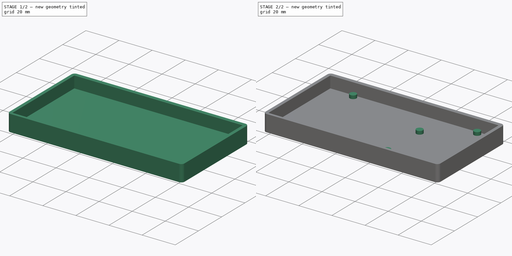
[diagram: build sequence overview — one tinted view per stage of 2, left to right]
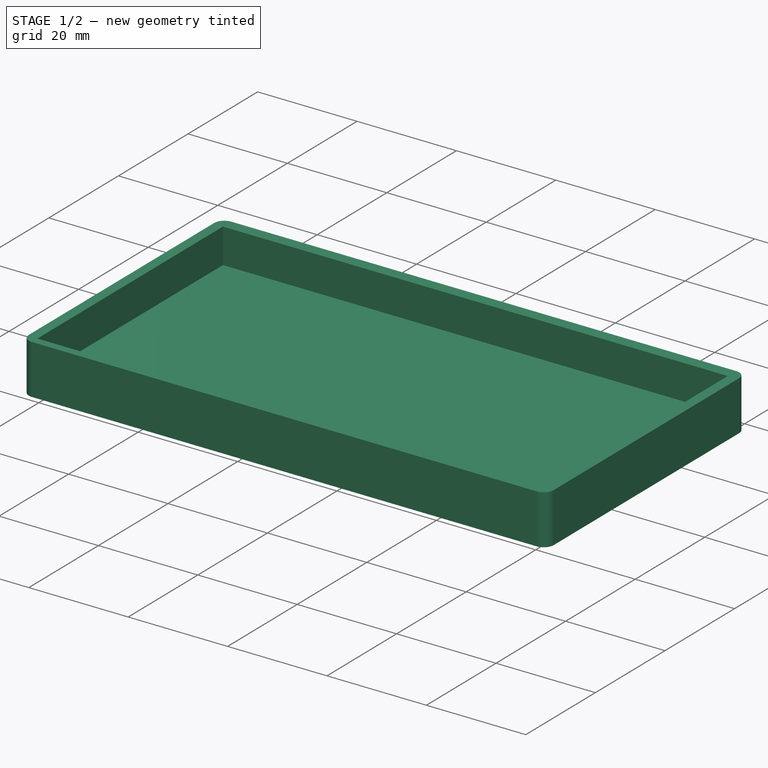
[diagram: stage 1 of 2 — iso view after this stage's code; geometry added in this stage tinted green]
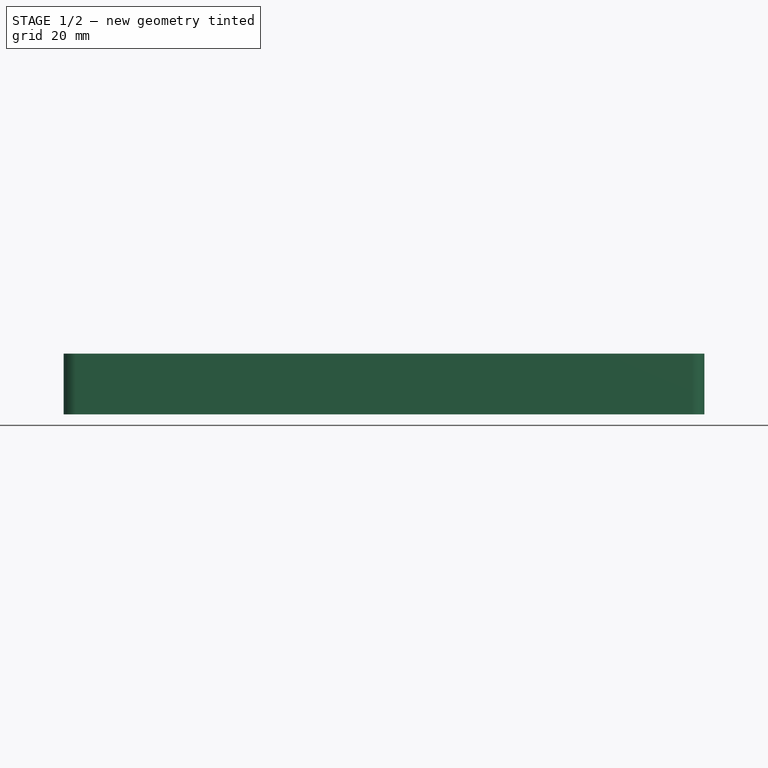
[diagram: stage 1 of 2 — front view after this stage's code; geometry added in this stage tinted green]
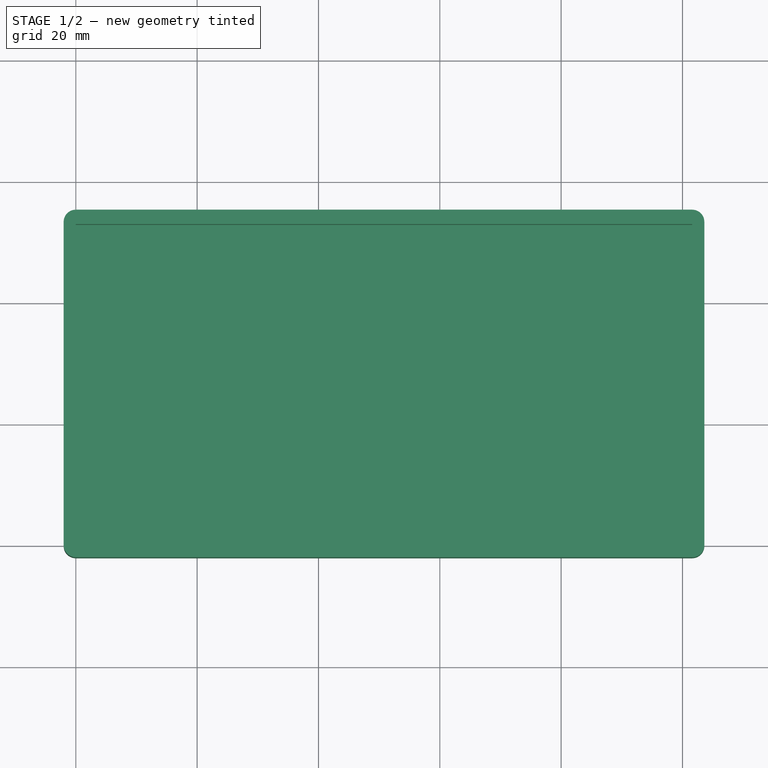
[diagram: stage 1 of 2 — top view after this stage's code; geometry added in this stage tinted green]
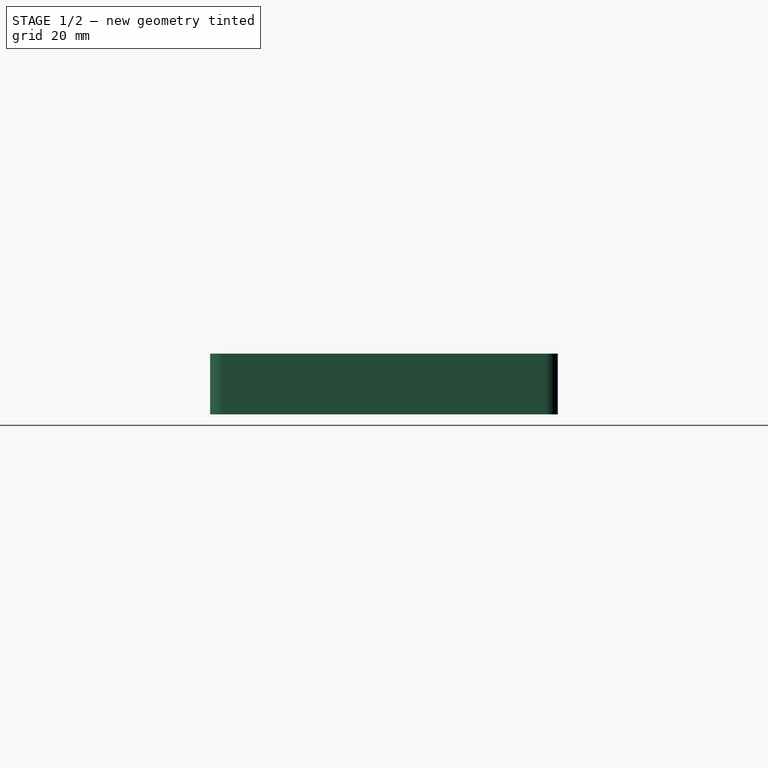
[diagram: stage 1 of 2 — right view after this stage's code; geometry added in this stage tinted green]
FCSTD DOCUMENT
Label: MegaCaseBottom
objects: Sketcher::SketchObject×3, PartDesign::Pad×2, PartDesign::Pocket×1
note: 8 computed .brp shape members not serialized (recipe doc carries the construction recipe); baked Part::Feature solids carry a one-line shape summary decoded from their .brp

FEATURE [Sketcher::SketchObject] Sketch
  sketch-geometry (20):
    g0: LineSegment [constr] StartX=0 StartY=0 StartZ=0 EndX=101.6 EndY=0 EndZ=0
    g1: LineSegment [constr] StartX=101.6 StartY=0 StartZ=0 EndX=101.6 EndY=53.3 EndZ=0
    g2: LineSegment [constr] StartX=101.6 StartY=53.3 StartZ=0 EndX=0 EndY=53.3 EndZ=0
    g3: LineSegment [constr] StartX=0 StartY=53.3 StartZ=0 EndX=0 EndY=0 EndZ=0
    g4: ArcOfCircle CenterX=0 CenterY=53.3 CenterZ=0 NormalX=0 NormalY=0 NormalZ=1 Radius=2 StartAngle=1.5708 EndAngle=3.1416
    g5: ArcOfCircle CenterX=101.6 CenterY=53.3 CenterZ=0 NormalX=0 NormalY=0 NormalZ=1 Radius=2 StartAngle=0 EndAngle=1.5708
    g6: ArcOfCircle CenterX=101.6 CenterY=0 CenterZ=0 NormalX=0 NormalY=0 NormalZ=1 Radius=2 StartAngle=4.71239 EndAngle=6.28319
    g7: ArcOfCircle CenterX=0 CenterY=0 CenterZ=0 NormalX=0 NormalY=0 NormalZ=1 Radius=2 StartAngle=3.14159 EndAngle=4.71239
    g8: LineSegment [constr] StartX=0 StartY=53.3 StartZ=0 EndX=0 EndY=55.3 EndZ=0
    g9: LineSegment StartX=0 StartY=55.3 StartZ=0 EndX=101.6 EndY=55.3 EndZ=0
    g10: LineSegment [constr] StartX=101.6 StartY=55.3 StartZ=0 EndX=101.6 EndY=53.3 EndZ=0
    g11: LineSegment [constr] StartX=101.6 StartY=53.3 StartZ=0 EndX=103.6 EndY=53.3 EndZ=0
    g12: LineSegment StartX=103.6 StartY=53.3 StartZ=0 EndX=103.6 EndY=0 EndZ=0
    g13: LineSegment [constr] StartX=103.6 StartY=0 StartZ=0 EndX=101.6 EndY=0 EndZ=0
    g14: LineSegment [constr] StartX=101.6 StartY=0 StartZ=0 EndX=101.6 EndY=-2 EndZ=0
    g15: LineSegment StartX=101.6 StartY=-2 StartZ=0 EndX=0 EndY=-2 EndZ=0
    g16: LineSegment [constr] StartX=0 StartY=-2 StartZ=0 EndX=0 EndY=0 EndZ=0
    g17: LineSegment [constr] StartX=0 StartY=0 StartZ=0 EndX=-2 EndY=0 EndZ=0
    g18: LineSegment StartX=-2 StartY=0 StartZ=0 EndX=-2 EndY=53.3 EndZ=0
    g19: LineSegment [constr] StartX=-2 StartY=53.3 StartZ=0 EndX=0 EndY=53.3 EndZ=0
  constraints (52):
    c: Coincident(g0,g1)
    c: Coincident(g1,g2)
    c: Coincident(g2,g3)
    c: Coincident(g3,g0)
    c: Horizontal(g0)
    c: Horizontal(g2)
    c: Vertical(g1)
    c: Vertical(g3)
    c: Coincident(g4,g2)
    c: Coincident(g5,g1)
    c: Coincident(g6,g0)
    c: Coincident(g7,g0)
    c: Coincident(g8,g2)
    c: Coincident(g8,g4)
    c: Vertical(g8)
    c: Coincident(g8,g9)
    c: Horizontal(g9)
    c: Coincident(g9,g10)
    c: Coincident(g10,g1)
    c: Vertical(g10)
    c: Coincident(g10,g11)
    c: Coincident(g11,g5)
    c: Horizontal(g11)
    c: Coincident(g11,g12)
    c: Coincident(g12,g6)
    c: Vertical(g12)
    c: Coincident(g12,g13)
    c: Coincident(g13,g0)
    c: Horizontal(g13)
    c: Coincident(g13,g14)
    c: Coincident(g14,g6)
    c: Vertical(g14)
    c: Coincident(g14,g15)
    c: Coincident(g15,g7)
    c: Horizontal(g15)
    c: Coincident(g15,g16)
    c: Coincident(g16,g0)
    c: Coincident(g16,g17)
    c: Coincident(g17,g7)
    c: Coincident(g17,g18)
    c: Coincident(g18,g4)
    c: Vertical(g18)
    c: Coincident(g18,g19)
    c: Coincident(g19,g2)
    c: Coincident(g5,g9)
    c: Vertical(g16)
    c: Horizontal(g17)
    c: DistanceX(g7,g0) = 2
    c: DistanceX(g0,g0) = 101.6
    c: DistanceY(g0,g2) = 53.3
    c: DistanceX(g0) = 0
    c: DistanceY(g0) = 0
FEATURE [PartDesign::Pad] Pad
  Length = 10
  MirroredExtent = false
  Sketch = -> Sketch
FEATURE [Sketcher::SketchObject] Sketch001
  Placement = pos=(0,0,10) rot=(0,0,1;0rad)
  Support = -> Pad [Face10]
  sketch-geometry (4):
    g0: LineSegment StartX=-0.0131577 StartY=-0.375494 StartZ=0 EndX=101.587 EndY=-0.375494 EndZ=0
    g1: LineSegment StartX=101.587 StartY=-0.375494 StartZ=0 EndX=101.587 EndY=52.9245 EndZ=0
    g2: LineSegment StartX=101.587 StartY=52.9245 StartZ=0 EndX=-0.0131577 EndY=52.9245 EndZ=0
    g3: LineSegment StartX=-0.0131577 StartY=52.9245 StartZ=0 EndX=-0.0131577 EndY=-0.375494 EndZ=0
  constraints (10):
    c: Coincident(g0,g1)
    c: Coincident(g1,g2)
    c: Coincident(g2,g3)
    c: Coincident(g3,g0)
    c: Horizontal(g0)
    c: Horizontal(g2)
    c: Vertical(g1)
    c: Vertical(g3)
    c: DistanceX(g0) = 101.6
    c: DistanceY(g3) = -53.3
FEATURE [PartDesign::Pocket] Pocket
  Length = 7
  Sketch = -> Sketch001
  Type = 0
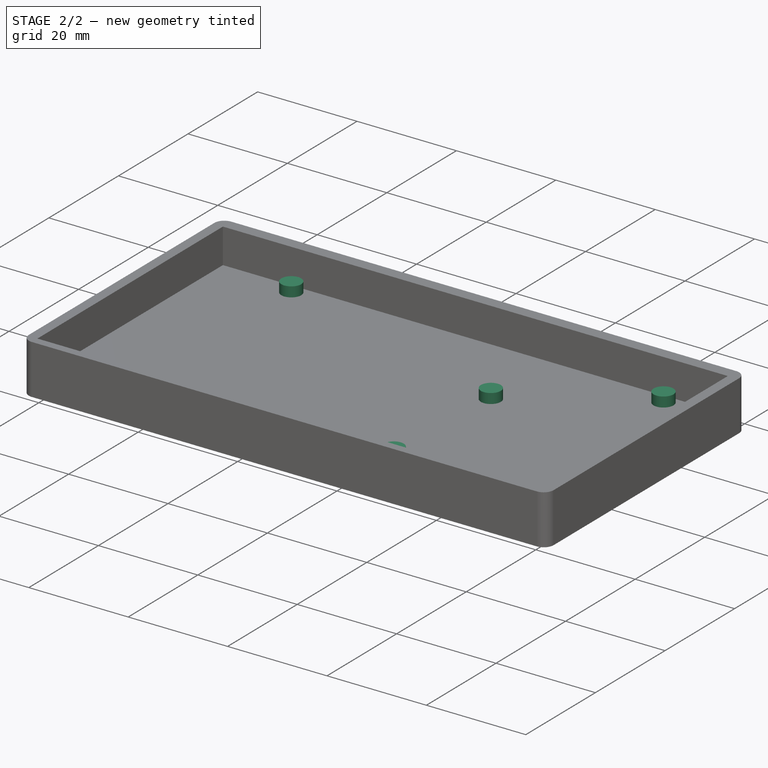
[diagram: stage 2 of 2 — iso view after this stage's code; geometry added in this stage tinted green]
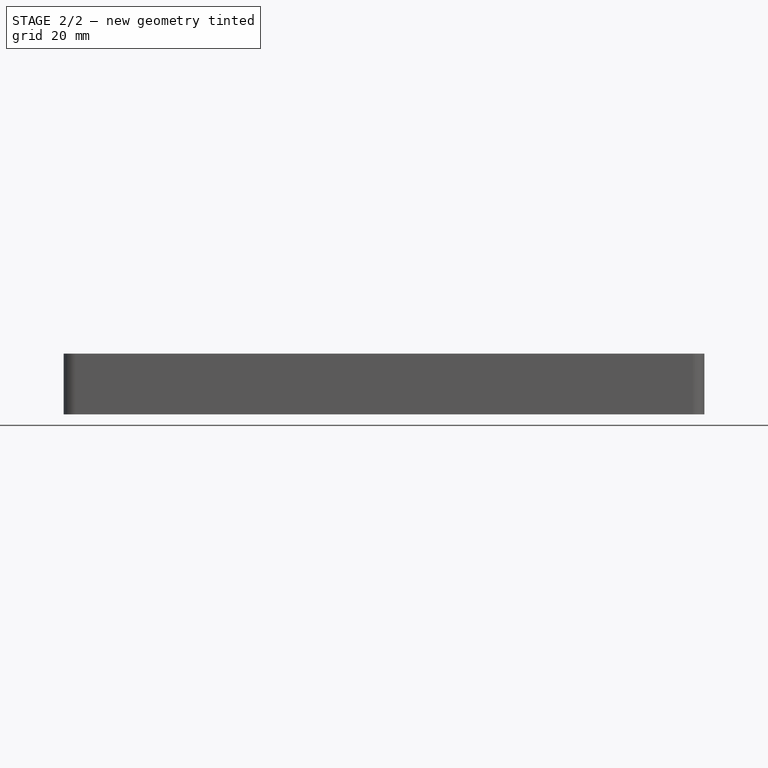
[diagram: stage 2 of 2 — front view after this stage's code; geometry added in this stage tinted green]
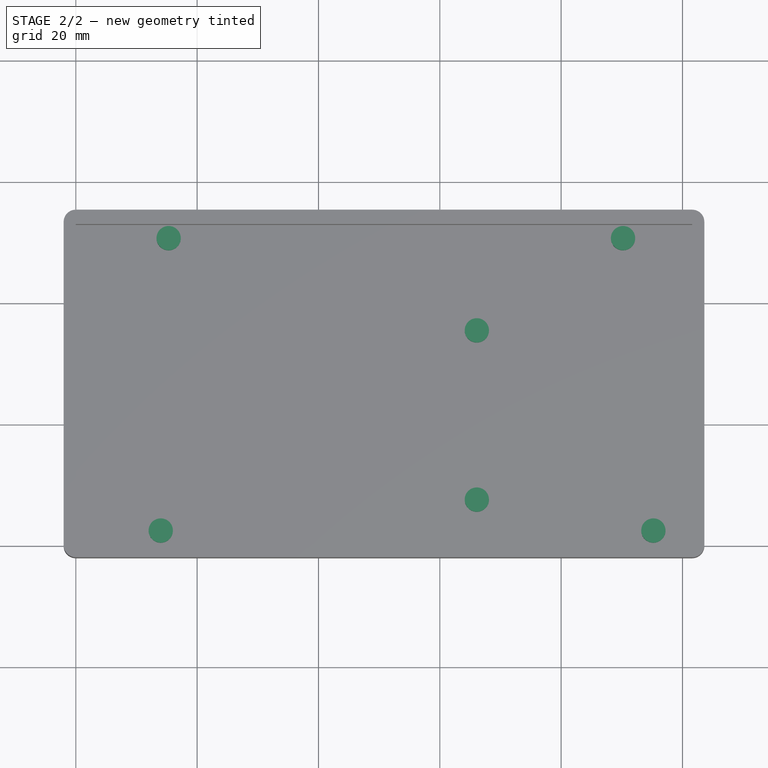
[diagram: stage 2 of 2 — top view after this stage's code; geometry added in this stage tinted green]
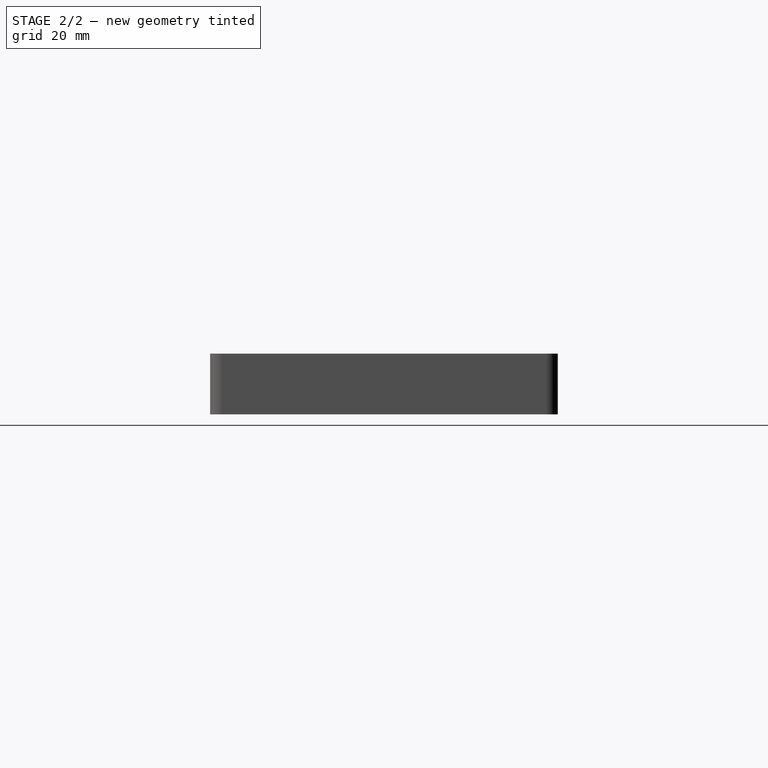
[diagram: stage 2 of 2 — right view after this stage's code; geometry added in this stage tinted green]
FEATURE [Sketcher::SketchObject] Sketch002
  Placement = pos=(0,0,3) rot=(0,0,1;0rad)
  Support = -> Pocket [Face15]
  sketch-geometry (9):
    g0: Circle CenterX=15.3 CenterY=50.7 CenterZ=0 NormalX=0 NormalY=0 NormalZ=1 Radius=2
    g1: Circle CenterX=14 CenterY=2.5 CenterZ=0 NormalX=0 NormalY=0 NormalZ=1 Radius=2
    g2: Circle CenterX=66.1 CenterY=35.5 CenterZ=0 NormalX=0 NormalY=0 NormalZ=1 Radius=2
    g3: Circle CenterX=66.1 CenterY=7.6 CenterZ=0 NormalX=0 NormalY=0 NormalZ=1 Radius=2
    g4: Circle CenterX=90.2 CenterY=50.7 CenterZ=0 NormalX=0 NormalY=0 NormalZ=1 Radius=2
    g5: Circle CenterX=95.2 CenterY=2.5 CenterZ=0 NormalX=0 NormalY=0 NormalZ=1 Radius=2
    g6: LineSegment [constr] StartX=14 StartY=2.5 StartZ=0 EndX=95.2 EndY=2.5 EndZ=0
    g7: LineSegment [constr] StartX=66.1 StartY=35.5 StartZ=0 EndX=66.1 EndY=7.6 EndZ=0
    g8: LineSegment [constr] StartX=15.3 StartY=50.7 StartZ=0 EndX=90.2 EndY=50.7 EndZ=0
  constraints (24):
    c: Equal(g5,g4)
    c: Equal(g4,g2)
    c: Equal(g2,g3)
    c: Equal(g3,g1)
    c: Equal(g1,g0)
    c: Radius(g0) = 2
    c: Coincident(g6,g1)
    c: Coincident(g6,g5)
    c: Horizontal(g6)
    c: Coincident(g7,g2)
    c: Coincident(g7,g3)
    c: Vertical(g7)
    c: Coincident(g8,g0)
    c: Coincident(g8,g4)
    c: Horizontal(g8)
    c: DistanceX(g0,g1) = -1.3
    c: DistanceX(g1) = 14
    c: DistanceX(g0,g2) = 50.8
    c: DistanceX(g2,g4) = 24.1
    c: DistanceY(g5) = 2.5
    c: DistanceY(g3,g5) = -5.1
    c: DistanceY(g3,g2) = 27.9
    c: DistanceY(g2,g4) = 15.2
    c: DistanceX(g4,g5) = 5
FEATURE [PartDesign::Pad] Pad001
  Length = 2
  MirroredExtent = false
  Sketch = -> Sketch002
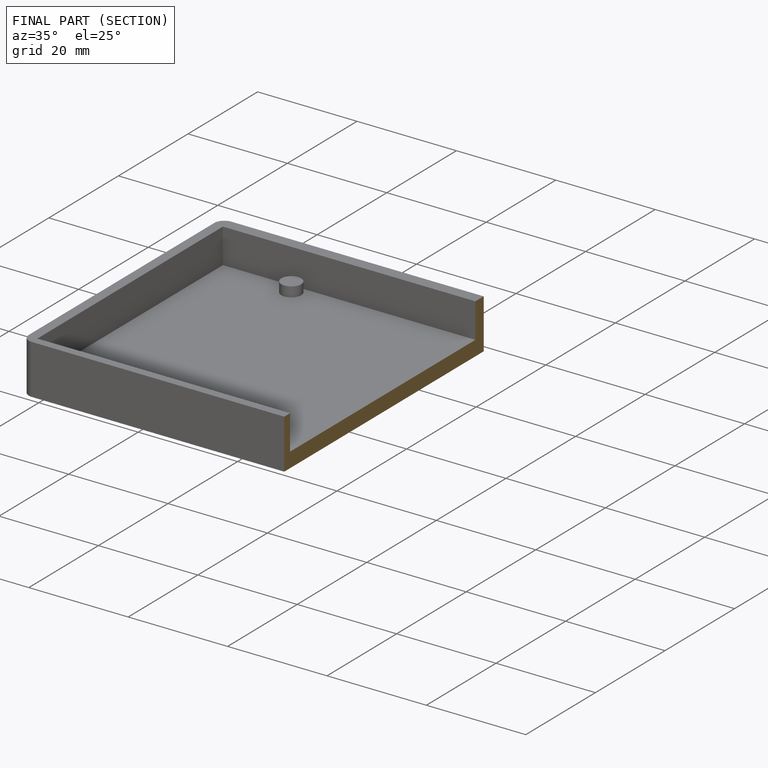
[diagram: finished part — half-section view (interior)]
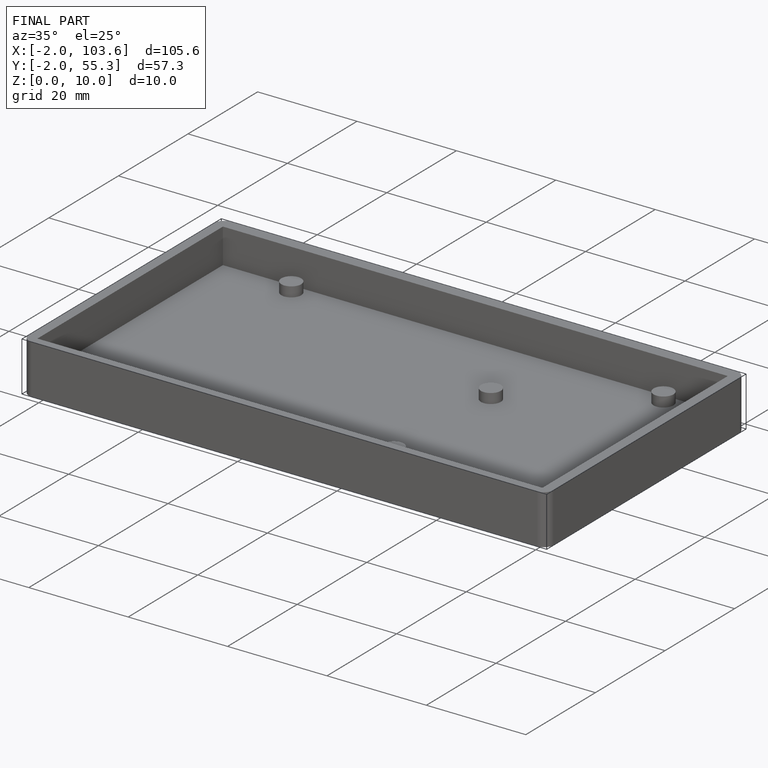
[diagram: finished part — iso view with bounding-box wireframe]
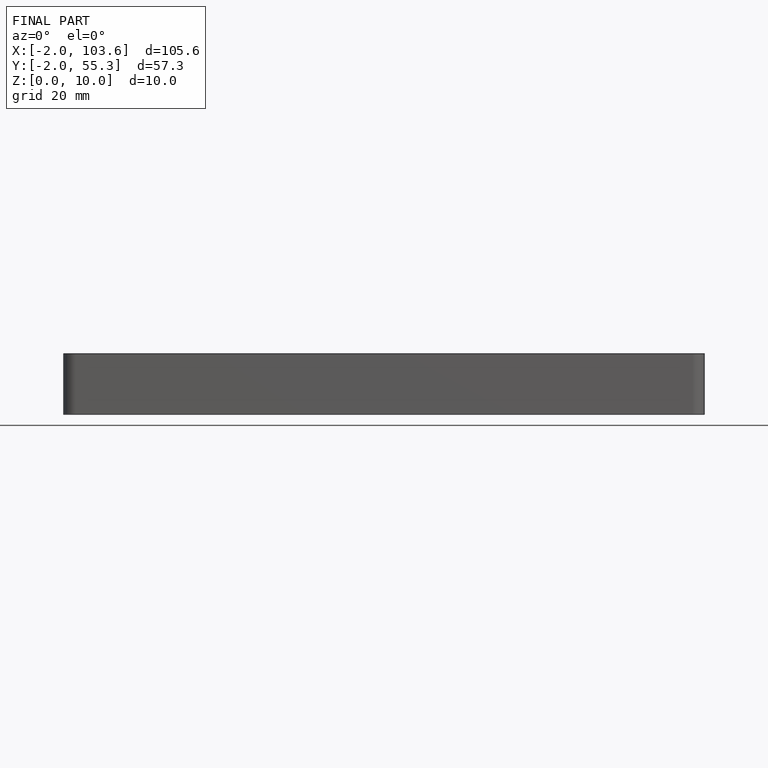
[diagram: finished part — front view with bounding-box wireframe]
